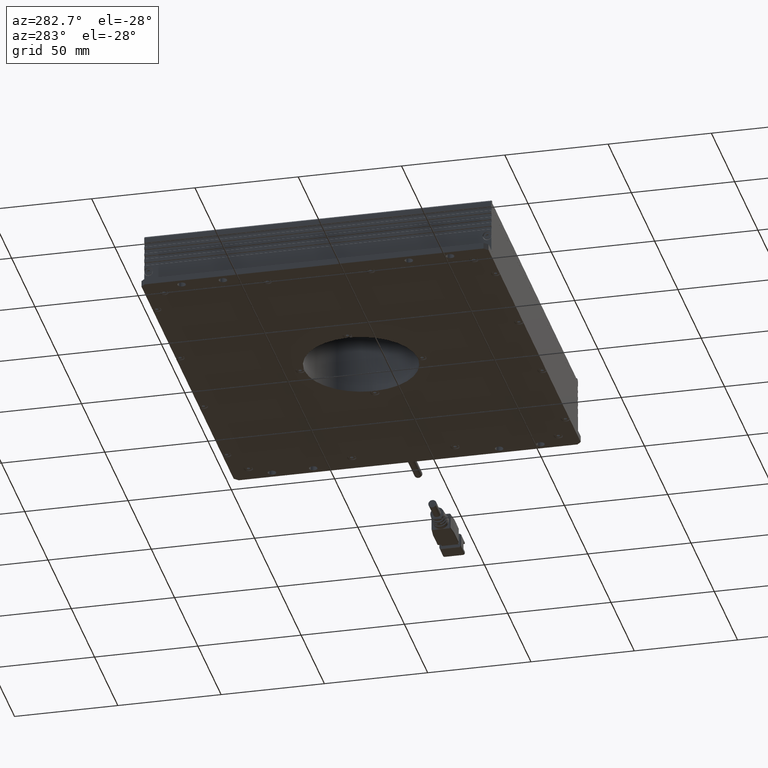
[diagram: clean part render]
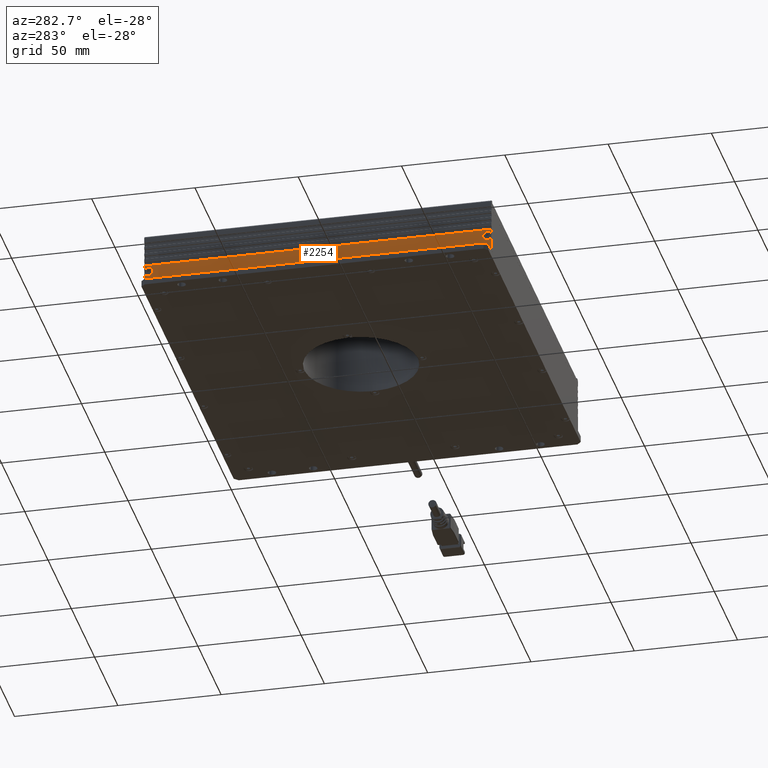
[diagram: same view with one face highlighted and labeled with its STEP entity id]
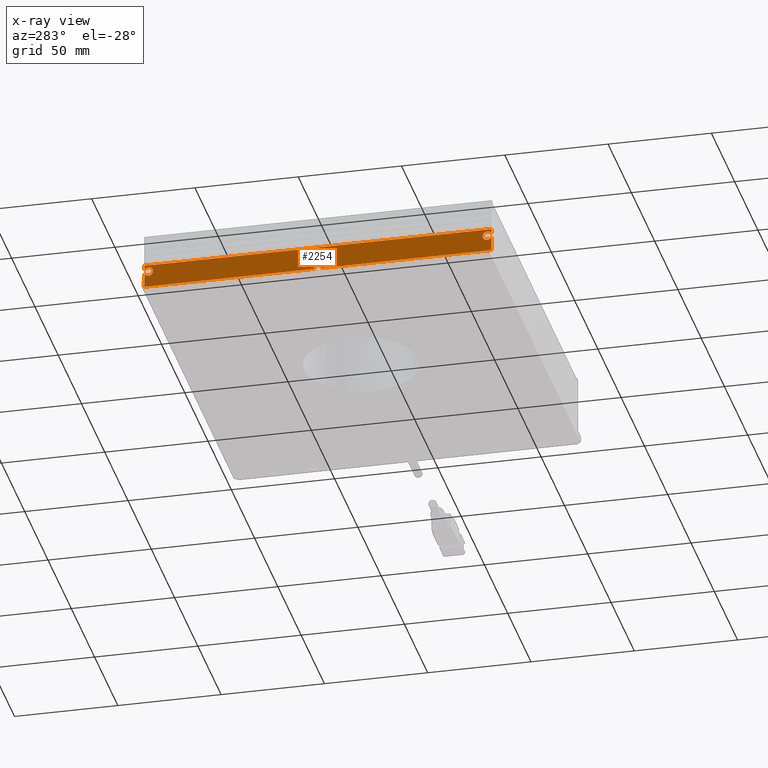
[diagram: x-ray of the same camera — body ghosted, the highlighted face saturated]
A machine part, auxiliary view. The second image highlights one B-rep face of the part: STEP entity #2254.
The next image is the same camera in x-ray: the body ghosted, the highlighted face saturated — about 0% of this face is hidden behind the body in this view.
In plain terms, the highlighted planar face has unit normal (-1, 0, 0).
Its self-contained STEP definition (entity closure, byte-faithful):
#2254=ADVANCED_FACE('NONE',(#5535),#5536,.T.);
#5535=FACE_OUTER_BOUND('',#9837,.T.);
#5536=PLANE('',#9838);
#9837=EDGE_LOOP('',(#17652,#17653,#17654,#17655,#17656,#17657,#17658,#17659,#17660,#17661,#17662,#17663,#17664,#17665));
#9838=AXIS2_PLACEMENT_3D('',#17666,#17667,#17668);
#17652=ORIENTED_EDGE('',*,*,#23722,.T.);
#17653=ORIENTED_EDGE('',*,*,#23727,.T.);
#17654=ORIENTED_EDGE('',*,*,#23728,.F.);
#17655=ORIENTED_EDGE('',*,*,#22201,.F.);
#17656=ORIENTED_EDGE('',*,*,#22232,.F.);
#17657=ORIENTED_EDGE('',*,*,#22234,.T.);
#17658=ORIENTED_EDGE('',*,*,#22230,.F.);
#17659=ORIENTED_EDGE('',*,*,#22389,.T.);
#17660=ORIENTED_EDGE('',*,*,#22460,.F.);
#17661=ORIENTED_EDGE('',*,*,#22453,.T.);
#17662=ORIENTED_EDGE('',*,*,#22459,.F.);
#17663=ORIENTED_EDGE('',*,*,#22483,.T.);
#17664=ORIENTED_EDGE('',*,*,#23729,.F.);
#17665=ORIENTED_EDGE('',*,*,#23730,.T.);
#17666=CARTESIAN_POINT('',(-0.093,-0.069375,-0.0116250000000003));
#17667=DIRECTION('',(-1.0,-0.0,0.0));
#17668=DIRECTION('',(0.0,-1.0,-3.49148336110938E-15));
#22201=EDGE_CURVE('5:2416',#24773,#24768,#24775,.T.);
#22230=EDGE_CURVE('NONE',#24829,#24831,#24832,.T.);
#22232=EDGE_CURVE('NONE',#24833,#24773,#24835,.T.);
#22234=EDGE_CURVE('NONE',#24833,#24831,#24837,.T.);
#22389=EDGE_CURVE('NONE',#24829,#25097,#25099,.T.);
#22453=EDGE_CURVE('NONE',#25205,#25206,#25207,.T.);
#22459=EDGE_CURVE('NONE',#25215,#25206,#25217,.T.);
#22460=EDGE_CURVE('NONE',#25205,#25097,#25218,.T.);
#22483=EDGE_CURVE('5:2440',#25215,#24915,#25258,.T.);
#23722=EDGE_CURVE('NONE',#27093,#27094,#27095,.T.);
#23727=EDGE_CURVE('NONE',#27094,#27102,#27103,.T.);
#23728=EDGE_CURVE('NONE',#24768,#27102,#27104,.T.);
#23729=EDGE_CURVE('NONE',#27105,#24915,#27106,.T.);
#23730=EDGE_CURVE('NONE',#27105,#27093,#27107,.T.);
#24768=VERTEX_POINT('',#28493);
#24773=VERTEX_POINT('NONE',#28500);
#24775=LINE('',#28503,#28504);
#24829=VERTEX_POINT('NONE',#28568);
#24831=VERTEX_POINT('NONE',#28570);
#24832=LINE('',#28571,#28572);
#24833=VERTEX_POINT('NONE',#28573);
#24835=LINE('',#28584,#28585);
#24837=CIRCLE('',#28587,0.00224999999774678);
#24915=VERTEX_POINT('',#28702);
#25097=VERTEX_POINT('NONE',#28995);
#25099=LINE('',#28997,#28998);
#25205=VERTEX_POINT('NONE',#29143);
#25206=VERTEX_POINT('NONE',#29144);
#25207=CIRCLE('',#29145,0.00224999999774716);
#25215=VERTEX_POINT('NONE',#29163);
#25217=LINE('',#29166,#29167);
#25218=LINE('',#29168,#29169);
#25258=LINE('',#29215,#29216);
#27093=VERTEX_POINT('NONE',#31816);
#27094=VERTEX_POINT('NONE',#31817);
#27095=CIRCLE('',#31818,0.00175);
#27102=VERTEX_POINT('NONE',#31827);
#27103=LINE('',#31828,#31829);
#27104=LINE('',#31830,#31831);
#27105=VERTEX_POINT('NONE',#31832);
#27106=LINE('',#31833,#31834);
#27107=LINE('',#31835,#31836);
#28493=CARTESIAN_POINT('',(-0.093,-0.069375,-0.0116250000000003));
#28500=CARTESIAN_POINT('',(-0.093,-0.069385,-0.0116250000000003));
#28503=CARTESIAN_POINT('',(-0.093,-0.069375,-0.0116250000000003));
#28504=VECTOR('',#33293,1.0);
#28568=CARTESIAN_POINT('',(-0.093,-0.069385,-0.000375000000000497));
#28570=CARTESIAN_POINT('',(-0.093,-0.069385,-0.00261386203223303));
#28571=CARTESIAN_POINT('',(-0.093,-0.0693849999999999,-0.0146250000000003));
#28572=VECTOR('',#33355,1.0);
#28573=CARTESIAN_POINT('',(-0.093,-0.069385,-0.00463613796776756));
#28584=CARTESIAN_POINT('',(-0.093,-0.0693849999999999,-0.0146250000000003));
#28585=VECTOR('',#33356,1.0);
#28587=AXIS2_PLACEMENT_3D('',#33357,#33358,#33359);
#28702=CARTESIAN_POINT('',(-0.093,0.098625,-0.0116249999999997));
#28995=CARTESIAN_POINT('',(-0.093,0.098635,-0.00037499999999991));
#28997=CARTESIAN_POINT('',(-0.093,-0.069375,-0.000375000000000496));
#28998=VECTOR('',#33526,1.0);
#29143=CARTESIAN_POINT('',(-0.093,0.098635,-0.00261386203223159));
#29144=CARTESIAN_POINT('',(-0.093,0.098635,-0.00463613796776782));
#29145=AXIS2_PLACEMENT_3D('',#33599,#33600,#33601);
#29163=CARTESIAN_POINT('',(-0.093,0.098635,-0.0116249999999997));
#29166=CARTESIAN_POINT('',(-0.093,0.0986350000000001,-0.0146249999999997));
#29167=VECTOR('',#33607,1.0);
#29168=CARTESIAN_POINT('',(-0.093,0.0986350000000001,-0.0146249999999997));
#29169=VECTOR('',#33608,1.0);
#29215=CARTESIAN_POINT('',(-0.093,0.098625,-0.0116249999999997));
#29216=VECTOR('',#33660,1.0);
#31816=CARTESIAN_POINT('',(-0.093,0.016375,-0.00987499999999999));
#31817=CARTESIAN_POINT('',(-0.093,0.012875,-0.00987500000000001));
#31818=AXIS2_PLACEMENT_3D('',#34768,#34769,#34770);
#31827=CARTESIAN_POINT('',(-0.093,0.012875,-0.011625));
#31828=CARTESIAN_POINT('',(-0.093,0.012875,-0.011625));
#31829=VECTOR('',#34776,1.0);
#31830=CARTESIAN_POINT('',(-0.093,0.014625,-0.011625));
#31831=VECTOR('',#34777,1.0);
#31832=CARTESIAN_POINT('',(-0.093,0.016375,-0.011625));
#31833=CARTESIAN_POINT('',(-0.093,0.014625,-0.011625));
#31834=VECTOR('',#34778,1.0);
#31835=CARTESIAN_POINT('',(-0.093,0.016375,-0.011625));
#31836=VECTOR('',#34779,1.0);
#33293=DIRECTION('',(0.0,1.0,3.49148336110938E-15));
#33355=DIRECTION('',(0.0,3.49148336110938E-15,-1.0));
#33356=DIRECTION('',(0.0,3.49148336110938E-15,-1.0));
#33357=CARTESIAN_POINT('',(-0.093,-0.067375,-0.00362500000000029));
#33358=DIRECTION('',(1.0,0.0,0.0));
#33359=DIRECTION('',(0.0,-1.0,-2.72049514879204E-15));
#33526=DIRECTION('',(-0.0,1.0,3.49148336110938E-15));
#33599=CARTESIAN_POINT('',(-0.093,0.096625,-0.00362499999999971));
#33600=DIRECTION('',(1.0,0.0,0.0));
#33601=DIRECTION('',(0.0,-1.0,-3.49148336110938E-15));
#33607=DIRECTION('',(0.0,-3.49148336110938E-15,1.0));
#33608=DIRECTION('',(0.0,-3.49148336110938E-15,1.0));
#33660=DIRECTION('',(0.0,-1.0,-3.49148336110938E-15));
#34768=CARTESIAN_POINT('',(-0.093,0.014625,-0.009875));
#34769=DIRECTION('',(1.0,0.0,0.0));
#34770=DIRECTION('',(0.0,-1.0,-3.49148336110938E-15));
#34776=DIRECTION('',(0.0,3.49148336110938E-15,-1.0));
#34777=DIRECTION('',(0.0,1.0,3.49148336110938E-15));
#34778=DIRECTION('',(0.0,1.0,3.49148336110938E-15));
#34779=DIRECTION('',(0.0,-3.49148336110938E-15,1.0));